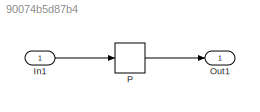
MODEL slx_90074b5d87b4
KIND model
CONFIG AbsTol = auto
CONFIG EnableMultiTasking = off
CONFIG FixedStep = auto
CONFIG MaxStep = auto
CONFIG MinStep = auto
CONFIG RelTol = 1e-3
CONFIG SampleTimeConstraint = Unconstrained
CONFIG Solver = FixedStepDiscrete
CONFIG SolverName = FixedStepDiscrete
CONFIG StartTime = 0.0
CONFIG StopTime = 10.0
BLOCK [Inport] In1
  IconDisplay = Port number
  OutDataTypeStr = single
  PortDimensions = 1
BLOCK [Outport] Out1
  IconDisplay = Port number
BLOCK [PreLookup] P
  BreakpointDataTypeStr = uint8
  BreakpointsData = [30.1947223205795 31.6947223205795 33.1947223205795 34.6947223205795]
  FractionDataTypeStr = single
  IndexSearchMethod = Linear search
  InputPortMap = u0
  OutputSelection = Index only
  Ports = [1, 1]
  RndMeth = Simplest
  UseLastBreakpoint = on
LINE In1:1 -> P:1
LINE P:1 -> Out1:1
